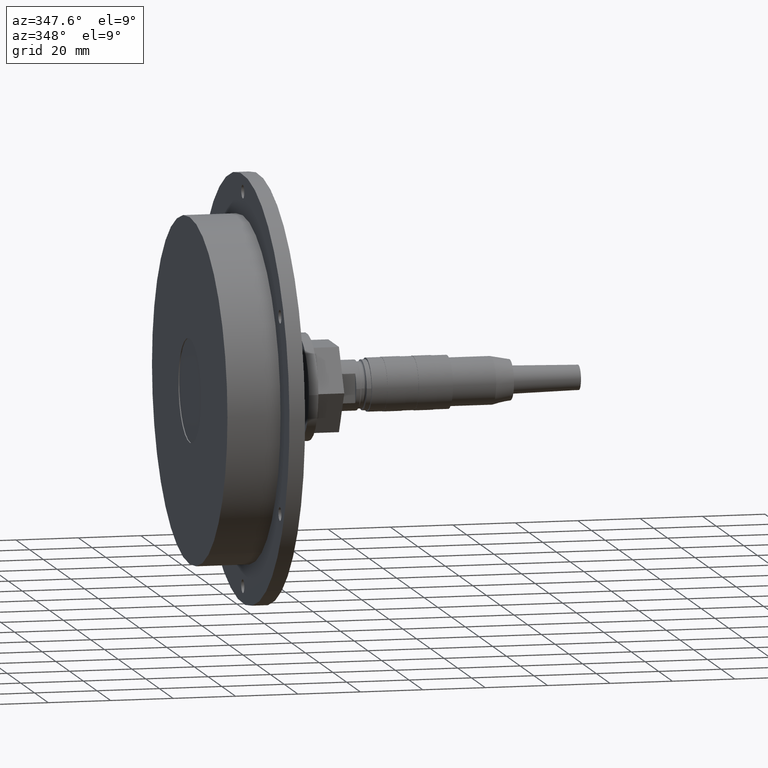
[diagram: clean part render]
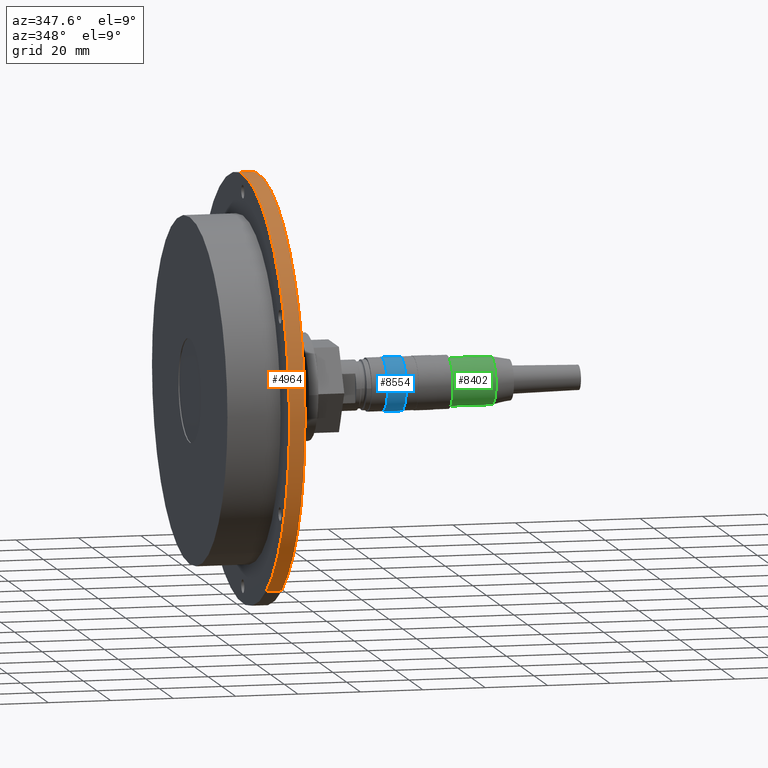
[diagram: same view with three faces highlighted in distinct colors, each labeled with its STEP entity id]
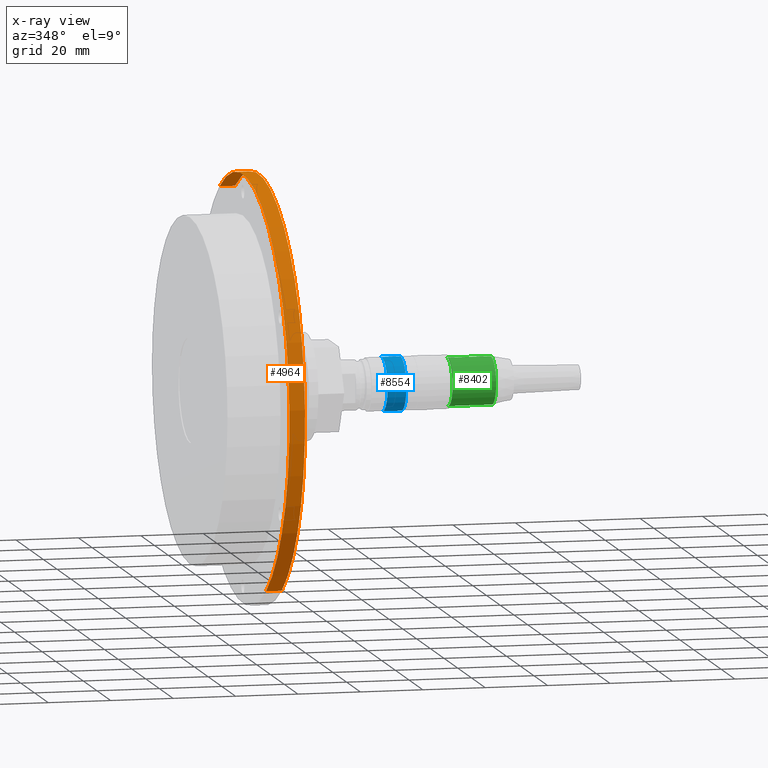
[diagram: x-ray of the same camera — body ghosted, the three highlighted faces saturated]
A machine part, auxiliary view with three faces highlighted in distinct colors.
The next image is the same camera in x-ray (body ghosted, the three faces saturated) — at least one of them is partly hidden behind the body in this view.
Their STEP definitions:

[orange] entity #4964 — the highlighted cylindrical surface (partial cylindrical patch) has radius 68 mm, axis along (1, -0, 0).
#4923=CARTESIAN_POINT('',(9.000000000000007,-12.499999999999998,0.0));
#4924=DIRECTION('',(1.0,1.224606E-016,0.0));
#4925=DIRECTION('',(0.0,1.0,0.0));
#4926=AXIS2_PLACEMENT_3D('',#4923,#4924,#4925);
#4927=CYLINDRICAL_SURFACE('',#4926,68.000000000000043);
#4928=CARTESIAN_POINT('',(11.500000000000000,55.500000000000028,0.0));
#4929=VERTEX_POINT('',#4928);
#4930=CARTESIAN_POINT('',(6.500000000000000,55.500000000000057,0.0));
#4931=VERTEX_POINT('',#4930);
#4932=CARTESIAN_POINT('',(11.500000000000000,55.500000000000028,0.0));
#4933=DIRECTION('',(-1.0,0.0,0.0));
#4934=VECTOR('',#4933,5.0);
#4935=LINE('',#4932,#4934);
#4936=EDGE_CURVE('',#4929,#4931,#4935,.T.);
#4937=ORIENTED_EDGE('',*,*,#4936,.F.);
#4938=CARTESIAN_POINT('',(11.500000000000016,-80.500000000000043,-8.327323E-015));
#4939=VERTEX_POINT('',#4938);
#4940=CARTESIAN_POINT('',(11.500000000000007,-12.499999999999996,0.0));
#4941=DIRECTION('',(1.0,0.0,0.0));
#4942=DIRECTION('',(0.0,1.0,0.0));
#4943=AXIS2_PLACEMENT_3D('',#4940,#4941,#4942);
#4944=CIRCLE('',#4943,68.000000000000028);
#4945=EDGE_CURVE('',#4939,#4929,#4944,.T.);
#4946=ORIENTED_EDGE('',*,*,#4945,.F.);
#4947=CARTESIAN_POINT('',(6.500000000000016,-80.500000000000043,-8.327323E-015));
#4948=VERTEX_POINT('',#4947);
#4949=CARTESIAN_POINT('',(11.500000000000016,-80.500000000000043,-8.327323E-015));
#4950=DIRECTION('',(-1.0,0.0,0.0));
#4951=VECTOR('',#4950,5.0);
#4952=LINE('',#4949,#4951);
#4953=EDGE_CURVE('',#4939,#4948,#4952,.T.);
#4954=ORIENTED_EDGE('',*,*,#4953,.T.);
#4955=CARTESIAN_POINT('',(6.500000000000007,-12.499999999999998,0.0));
#4956=DIRECTION('',(1.0,0.0,0.0));
#4957=DIRECTION('',(0.0,1.0,0.0));
#4958=AXIS2_PLACEMENT_3D('',#4955,#4956,#4957);
#4959=CIRCLE('',#4958,68.000000000000057);
#4960=EDGE_CURVE('',#4948,#4931,#4959,.T.);
#4961=ORIENTED_EDGE('',*,*,#4960,.T.);
#4962=EDGE_LOOP('',(#4937,#4946,#4954,#4961));
#4963=FACE_OUTER_BOUND('',#4962,.T.);
#4964=ADVANCED_FACE('',(#4963),#4927,.T.);

[blue] entity #8554 — the highlighted cylindrical surface (edge-blend (fillet) strip) has radius 8.6 mm, axis along (-1, 0, 0).
#8044=CARTESIAN_POINT('',(112.999999999999970,58.599999999999994,0.0));
#8045=VERTEX_POINT('',#8044);
#8046=CARTESIAN_POINT('',(106.999999999999970,58.599999999999994,0.0));
#8047=VERTEX_POINT('',#8046);
#8048=CARTESIAN_POINT('',(112.999999999999970,58.599999999999994,0.0));
#8049=DIRECTION('',(-1.0,0.0,0.0));
#8050=VECTOR('',#8049,6.0);
#8051=LINE('',#8048,#8050);
#8052=EDGE_CURVE('',#8045,#8047,#8051,.T.);
#8054=CARTESIAN_POINT('',(112.999999999999970,41.399999999999991,-1.053161E-015));
#8055=VERTEX_POINT('',#8054);
#8063=CARTESIAN_POINT('',(106.999999999999970,41.399999999999991,-1.053161E-015));
#8064=VERTEX_POINT('',#8063);
#8065=CARTESIAN_POINT('',(112.999999999999970,41.399999999999991,-1.053161E-015));
#8066=DIRECTION('',(-1.0,0.0,0.0));
#8067=VECTOR('',#8066,6.0);
#8068=LINE('',#8065,#8067);
#8069=EDGE_CURVE('',#8055,#8064,#8068,.T.);
#8522=CARTESIAN_POINT('',(106.999999999999970,49.999999999999993,0.0));
#8523=DIRECTION('',(1.0,0.0,0.0));
#8524=DIRECTION('',(0.0,1.0,0.0));
#8525=AXIS2_PLACEMENT_3D('',#8522,#8523,#8524);
#8526=CIRCLE('',#8525,8.600000000000001);
#8527=EDGE_CURVE('',#8047,#8064,#8526,.T.);
#8537=CARTESIAN_POINT('',(109.999999999999970,49.999999999999993,0.0));
#8538=DIRECTION('',(1.0,0.0,0.0));
#8539=DIRECTION('',(0.0,1.0,0.0));
#8540=AXIS2_PLACEMENT_3D('',#8537,#8538,#8539);
#8541=CYLINDRICAL_SURFACE('',#8540,8.600000000000001);
#8542=ORIENTED_EDGE('',*,*,#8052,.T.);
#8543=ORIENTED_EDGE('',*,*,#8527,.T.);
#8544=ORIENTED_EDGE('',*,*,#8069,.F.);
#8545=CARTESIAN_POINT('',(112.999999999999970,49.999999999999993,0.0));
#8546=DIRECTION('',(1.0,0.0,0.0));
#8547=DIRECTION('',(0.0,1.0,0.0));
#8548=AXIS2_PLACEMENT_3D('',#8545,#8546,#8547);
#8549=CIRCLE('',#8548,8.600000000000001);
#8550=EDGE_CURVE('',#8045,#8055,#8549,.T.);
#8551=ORIENTED_EDGE('',*,*,#8550,.F.);
#8552=EDGE_LOOP('',(#8542,#8543,#8544,#8551));
#8553=FACE_OUTER_BOUND('',#8552,.T.);
#8554=ADVANCED_FACE('',(#8553),#8541,.T.);

[green] entity #8402 — the highlighted cylindrical surface (edge-blend (fillet) strip) has radius 7.65 mm, axis along (-1, 0, 0).
#8212=CARTESIAN_POINT('',(91.999999999999972,57.649999999999991,0.0));
#8213=VERTEX_POINT('',#8212);
#8214=CARTESIAN_POINT('',(78.0,57.649999999999991,0.0));
#8215=VERTEX_POINT('',#8214);
#8216=CARTESIAN_POINT('',(91.999999999999972,57.649999999999991,0.0));
#8217=DIRECTION('',(-1.0,0.0,0.0));
#8218=VECTOR('',#8217,13.999999999999972);
#8219=LINE('',#8216,#8218);
#8220=EDGE_CURVE('',#8213,#8215,#8219,.T.);
#8222=CARTESIAN_POINT('',(91.999999999999972,42.349999999999994,-9.368239E-016));
#8223=VERTEX_POINT('',#8222);
#8231=CARTESIAN_POINT('',(78.0,42.349999999999994,-9.368239E-016));
#8232=VERTEX_POINT('',#8231);
#8233=CARTESIAN_POINT('',(91.999999999999972,42.349999999999994,-9.368239E-016));
#8234=DIRECTION('',(-1.0,0.0,0.0));
#8235=VECTOR('',#8234,13.999999999999972);
#8236=LINE('',#8233,#8235);
#8237=EDGE_CURVE('',#8223,#8232,#8236,.T.);
#8375=CARTESIAN_POINT('',(78.0,49.999999999999993,0.0));
#8376=DIRECTION('',(1.0,0.0,0.0));
#8377=DIRECTION('',(0.0,1.0,0.0));
#8378=AXIS2_PLACEMENT_3D('',#8375,#8376,#8377);
#8379=CIRCLE('',#8378,7.649999999999999);
#8380=EDGE_CURVE('',#8215,#8232,#8379,.T.);
#8385=CARTESIAN_POINT('',(84.999999999999986,49.999999999999993,0.0));
#8386=DIRECTION('',(1.0,0.0,0.0));
#8387=DIRECTION('',(0.0,1.0,0.0));
#8388=AXIS2_PLACEMENT_3D('',#8385,#8386,#8387);
#8389=CYLINDRICAL_SURFACE('',#8388,7.649999999999999);
#8390=ORIENTED_EDGE('',*,*,#8220,.T.);
#8391=ORIENTED_EDGE('',*,*,#8380,.T.);
#8392=ORIENTED_EDGE('',*,*,#8237,.F.);
#8393=CARTESIAN_POINT('',(91.999999999999972,49.999999999999993,0.0));
#8394=DIRECTION('',(1.0,0.0,0.0));
#8395=DIRECTION('',(0.0,1.0,0.0));
#8396=AXIS2_PLACEMENT_3D('',#8393,#8394,#8395);
#8397=CIRCLE('',#8396,7.649999999999999);
#8398=EDGE_CURVE('',#8213,#8223,#8397,.T.);
#8399=ORIENTED_EDGE('',*,*,#8398,.F.);
#8400=EDGE_LOOP('',(#8390,#8391,#8392,#8399));
#8401=FACE_OUTER_BOUND('',#8400,.T.);
#8402=ADVANCED_FACE('',(#8401),#8389,.T.);